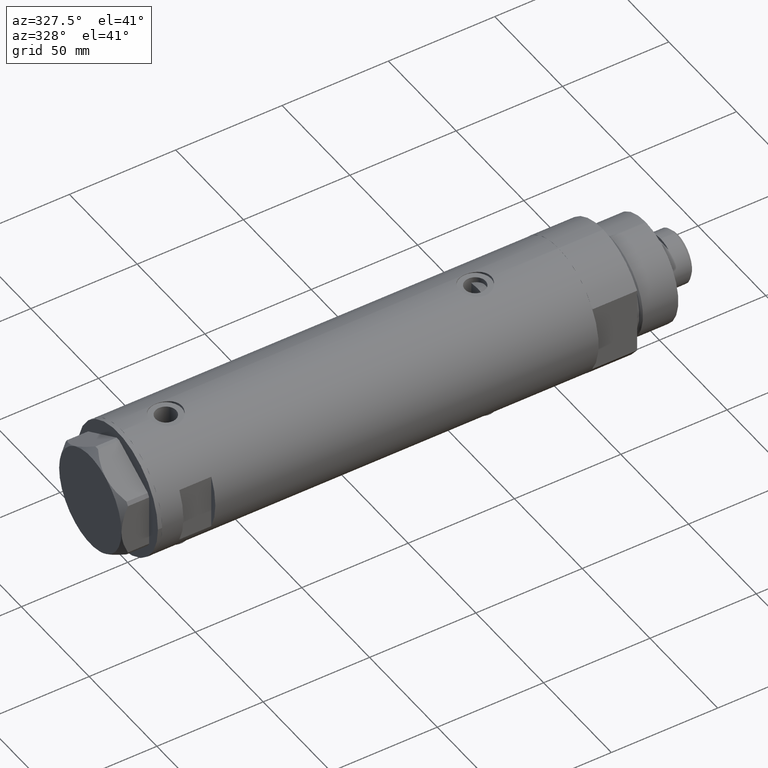
[diagram: clean part render]
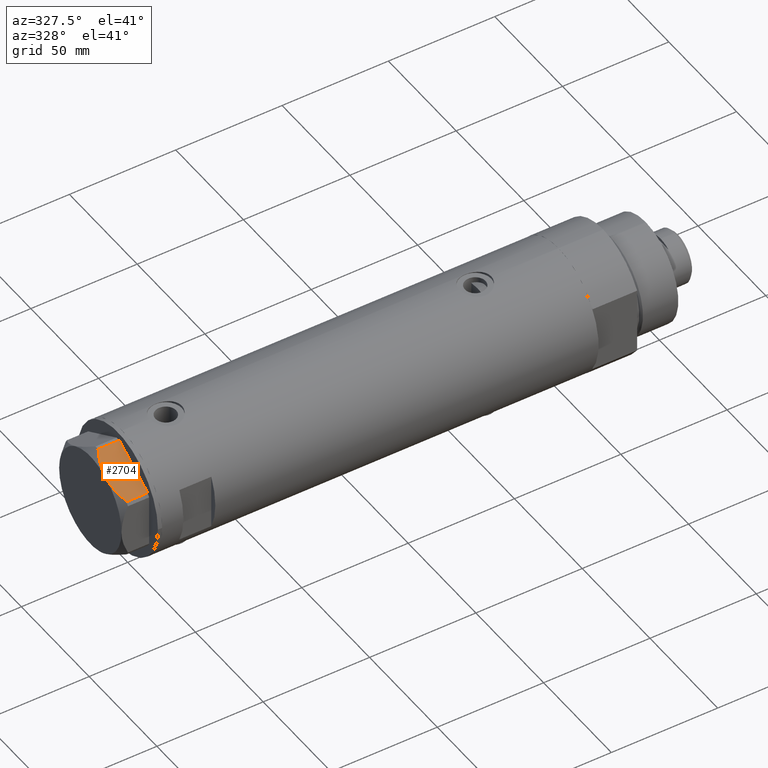
[diagram: same view with one face highlighted and labeled with its STEP entity id]
A machine part, auxiliary view. The second image highlights one B-rep face of the part: STEP entity #2704.
In plain terms, the highlighted planar face has unit normal (-0, 0.5, -0.866).
Its self-contained STEP definition (entity closure, byte-faithful):
#45 = CARTESIAN_POINT ( 'NONE',  ( -22.03005154776132102, -13.83905619136147536, 13.00000000000000000 ) ) ;
#62 = CARTESIAN_POINT ( 'NONE',  ( -22.03005154776146313, -13.83905619136139364, 9.983800287807548912 ) ) ;
#128 = VERTEX_POINT ( 'NONE', #2943 ) ;
#147 = ORIENTED_EDGE ( 'NONE', *, *, #1213, .T. ) ;
#331 = CARTESIAN_POINT ( 'NONE',  ( -11.49999999999990585, -19.91858428704219364, 13.00000000000000000 ) ) ;
#512 = LINE ( 'NONE', #825, #3757 ) ;
#635 = CARTESIAN_POINT ( 'NONE',  ( -22.99999999999990408, -13.27905619136147841, 13.00000000000000000 ) ) ;
#701 = CARTESIAN_POINT ( 'NONE',  ( -5.229981517797923196, -23.53858114556527781, 11.89212886775844602 ) ) ;
#727 = CARTESIAN_POINT ( 'NONE',  ( -4.357207709415887642, -24.04247733877630466, 11.57055225522972819 ) ) ;
#825 = CARTESIAN_POINT ( 'NONE',  ( -0.9699484522383907681, -25.99811238272274494, 13.00000000000000000 ) ) ;
#849 = AXIS2_PLACEMENT_3D ( 'NONE', #635, #4665, #4320 ) ;
#966 = ORIENTED_EDGE ( 'NONE', *, *, #1535, .T. ) ;
#1163 = CARTESIAN_POINT ( 'NONE',  ( -5.671686373602661035, -23.28356272816404271, 12.04068176582933702 ) ) ;
#1213 = EDGE_CURVE ( 'NONE', #2231, #2384, #512, .T. ) ;
#1417 = CARTESIAN_POINT ( 'NONE',  ( -22.03005154776146313, -13.83905619136139364, 9.983800287807548912 ) ) ;
#1517 = DIRECTION ( 'NONE',  ( -0.000000000000000000, 0.000000000000000000, -1.000000000000000000 ) ) ;
#1535 = EDGE_CURVE ( 'NONE', #2037, #128, #3351, .T. ) ;
#1698 = FACE_OUTER_BOUND ( 'NONE', #4620, .T. ) ;
#1788 = CARTESIAN_POINT ( 'NONE',  ( -11.49999999999990585, -19.91858428704219364, 13.00000000000000000 ) ) ;
#1793 = CARTESIAN_POINT ( 'NONE',  ( -16.05322244309625290, -17.28978008384019915, 12.42689993760378542 ) ) ;
#1927 = DIRECTION ( 'NONE',  ( 0.000000000000000000, 0.000000000000000000, 1.000000000000000000 ) ) ;
#2037 = VERTEX_POINT ( 'NONE', #62 ) ;
#2170 = CARTESIAN_POINT ( 'NONE',  ( -1.799196345396643304, -25.51934588838291162, 10.43131750950939640 ) ) ;
#2173 = CARTESIAN_POINT ( 'NONE',  ( -0.9699484522383873264, -25.99811238272275205, 0.000000000000000000 ) ) ;
#2231 = VERTEX_POINT ( 'NONE', #2173 ) ;
#2266 = CARTESIAN_POINT ( 'NONE',  ( -3.925137811029895563, -24.29193301091818213, 11.39727285399141365 ) ) ;
#2384 = VERTEX_POINT ( 'NONE', #4415 ) ;
#2396 = VECTOR ( 'NONE', #4150, 1000.000000000000000 ) ;
#2508 = CARTESIAN_POINT ( 'NONE',  ( -20.37350567916426058, -14.79546339452093662, 10.87778242614345992 ) ) ;
#2648 = CARTESIAN_POINT ( 'NONE',  ( -7.884645426989515649, -22.00591022298554833, 12.70765172847701052 ) ) ;
#2690 = CARTESIAN_POINT ( 'NONE',  ( -22.99999999999990408, -13.27905619136147841, 0.000000000000000000 ) ) ;
#2694 = ORIENTED_EDGE ( 'NONE', *, *, #3548, .F. ) ;
#2704 = ADVANCED_FACE ( 'NONE', ( #1698 ), #3943, .F. ) ;
#2748 = B_SPLINE_CURVE_WITH_KNOTS ( 'NONE', 3,
 ( #3359, #2988, #2648, #1163, #701, #727, #2266, #3310, #2170, #4088 ),
 .UNSPECIFIED., .F., .F.,
 ( 4, 2, 2, 2, 4 ),
 ( 0.01376519981810312224, 0.01998941321701588891, 0.02154546656674407451, 0.02310151991647226705, 0.02621362661592864171 ),
 .UNSPECIFIED. ) ;
#2877 = CARTESIAN_POINT ( 'NONE',  ( -11.95865151389046588, -19.65378171203314395, 13.00000000000009948 ) ) ;
#2887 = EDGE_CURVE ( 'NONE', #3822, #2384, #2748, .T. ) ;
#2896 = CARTESIAN_POINT ( 'NONE',  ( -15.16323225988328893, -17.80361615569431777, 12.63731396715695077 ) ) ;
#2923 = CARTESIAN_POINT ( 'NONE',  ( -13.80210138309694479, -18.58946543380922378, 12.85271263895580418 ) ) ;
#2943 = CARTESIAN_POINT ( 'NONE',  ( -22.03005154776132102, -13.83905619136147536, 0.000000000000000000 ) ) ;
#2988 = CARTESIAN_POINT ( 'NONE',  ( -9.678244919010003500, -20.97037507344916563, 13.00000000000009237 ) ) ;
#3130 = LINE ( 'NONE', #2690, #2396 ) ;
#3310 = CARTESIAN_POINT ( 'NONE',  ( -2.640413878806567638, -25.03366871902166935, 10.84420102443839262 ) ) ;
#3351 = LINE ( 'NONE', #45, #4394 ) ;
#3359 = CARTESIAN_POINT ( 'NONE',  ( -11.49999999999990585, -19.91858428704219364, 13.00000000000000000 ) ) ;
#3548 = EDGE_CURVE ( 'NONE', #2037, #3822, #3721, .T. ) ;
#3721 = B_SPLINE_CURVE_WITH_KNOTS ( 'NONE', 3,
 ( #1417, #2508, #4388, #1793, #2896, #2923, #4775, #4416, #2877, #331 ),
 .UNSPECIFIED., .F., .F.,
 ( 4, 2, 2, 2, 4 ),
 ( 0.001228959670438515206, 0.007497079744270818830, 0.01063113978118697053, 0.01219816979964504639, 0.01376519981810312224 ),
 .UNSPECIFIED. ) ;
#3757 = VECTOR ( 'NONE', #1927, 1000.000000000000000 ) ;
#3822 = VERTEX_POINT ( 'NONE', #1788 ) ;
#3884 = ORIENTED_EDGE ( 'NONE', *, *, #2887, .F. ) ;
#3943 = PLANE ( 'NONE',  #849 ) ;
#4088 = CARTESIAN_POINT ( 'NONE',  ( -0.9699484522383853280, -25.99811238272275205, 9.983800287807632401 ) ) ;
#4150 = DIRECTION ( 'NONE',  ( 0.8660254037844415942, -0.4999999999999950595, 0.000000000000000000 ) ) ;
#4266 = EDGE_CURVE ( 'NONE', #128, #2231, #3130, .T. ) ;
#4320 = DIRECTION ( 'NONE',  ( -0.8660254037844415942, 0.4999999999999950040, 0.000000000000000000 ) ) ;
#4388 = CARTESIAN_POINT ( 'NONE',  ( -18.67981377008999644, -15.77331687414923422, 11.62937486882610827 ) ) ;
#4394 = VECTOR ( 'NONE', #1517, 1000.000000000000000 ) ;
#4415 = CARTESIAN_POINT ( 'NONE',  ( -0.9699484522383853280, -25.99811238272275205, 9.983800287807632401 ) ) ;
#4416 = CARTESIAN_POINT ( 'NONE',  ( -12.41906678023023325, -19.38796083407287085, 12.98168640760950865 ) ) ;
#4620 = EDGE_LOOP ( 'NONE', ( #2694, #966, #4644, #147, #3884 ) ) ;
#4644 = ORIENTED_EDGE ( 'NONE', *, *, #4266, .T. ) ;
#4665 = DIRECTION ( 'NONE',  ( 0.4999999999999950040, 0.8660254037844415942, -0.000000000000000000 ) ) ;
#4775 = CARTESIAN_POINT ( 'NONE',  ( -13.34348161667001698, -18.85424967941148822, 12.90784227772843806 ) ) ;